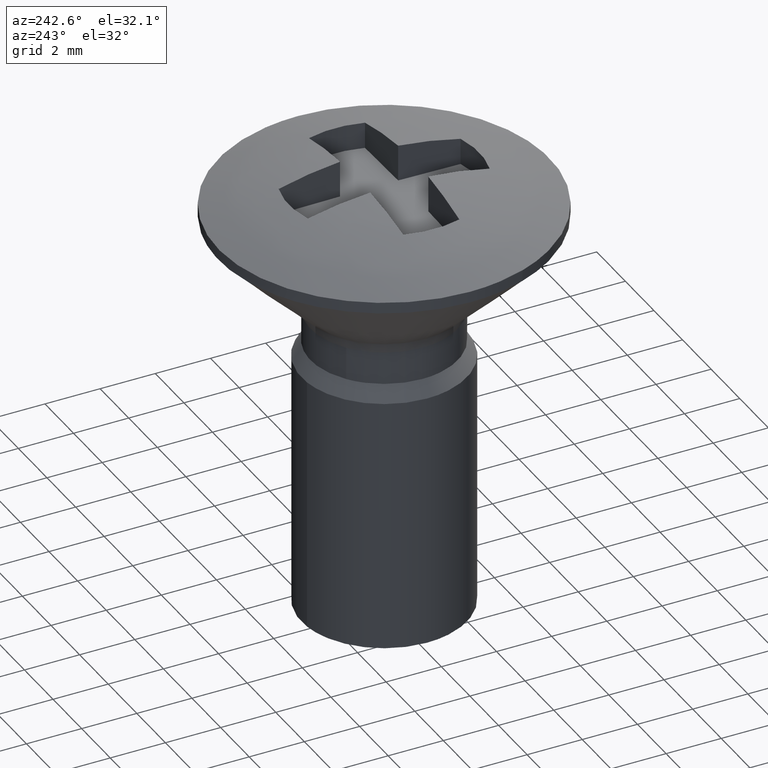
[diagram: clean part render]
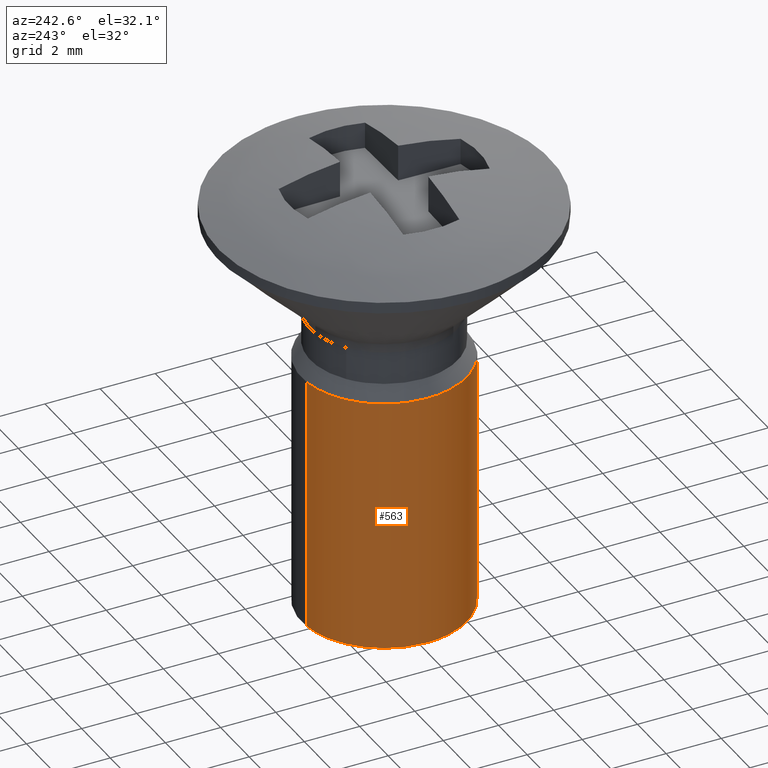
[diagram: same view with one face highlighted and labeled with its STEP entity id]
A machine part, auxiliary view. The second image highlights one B-rep face of the part: STEP entity #563.
In plain terms, the highlighted face is a freeform B-spline surface patch.
Its self-contained STEP definition (entity closure, byte-faithful):
#333=CARTESIAN_POINT('',(0.183143241077346,-2.994404538160465,-5.724999995645167));
#334=VERTEX_POINT('',#333);
#378=CARTESIAN_POINT('',(-0.354100393105621,2.979028853770474,-5.725000000000005));
#379=VERTEX_POINT('',#378);
#395=CARTESIAN_POINT('',(-3.0,0.0,-5.725000000000000));
#396=VERTEX_POINT('',#395);
#397=CARTESIAN_POINT('',(-3.0,0.0,-5.725000000000000));
#398=CARTESIAN_POINT('',(-3.000000000000000,2.664525659304678,-5.725000000000000));
#399=CARTESIAN_POINT('',(-0.354100393105621,2.979028853770474,-5.725000000000005));
#407=(BOUNDED_CURVE()B_SPLINE_CURVE(2,(#397,#398,#399),.UNSPECIFIED.,.F.,.U.)B_SPLINE_CURVE_WITH_KNOTS((3,3),(0.0,0.229562604613297),.UNSPECIFIED.)CURVE()GEOMETRIC_REPRESENTATION_ITEM()RATIONAL_B_SPLINE_CURVE((1.0,0.731050679262446,0.956027011144811))REPRESENTATION_ITEM(''));
#408=EDGE_CURVE('',#396,#379,#407,.T.);
#410=CARTESIAN_POINT('',(0.183143241077346,-2.994404538160464,-5.724999995645168));
#411=CARTESIAN_POINT('',(0.091657097876011,-3.000000000000000,-5.725000000000000));
#412=CARTESIAN_POINT('',(0.0,-3.0,-5.725000000000000));
#413=CARTESIAN_POINT('',(-3.0,-3.0,-5.724999999999999));
#414=CARTESIAN_POINT('',(-3.0,0.0,-5.725000000000000));
#422=(BOUNDED_CURVE()B_SPLINE_CURVE(2,(#410,#411,#412,#413,#414),.UNSPECIFIED.,.F.,.U.)B_SPLINE_CURVE_WITH_KNOTS((3,2,3),(0.739333099233568,0.750000000000000,1.0),.UNSPECIFIED.)CURVE()GEOMETRIC_REPRESENTATION_ITEM()RATIONAL_B_SPLINE_CURVE((0.976072335272453,0.987502948399024,1.0,0.707106781186548,1.0))REPRESENTATION_ITEM(''));
#423=EDGE_CURVE('',#334,#396,#422,.T.);
#462=CARTESIAN_POINT('',(0.183140927725295,-2.994404682164692,-15.0));
#463=VERTEX_POINT('',#462);
#464=CARTESIAN_POINT('',(0.183143241077346,-2.994404538160465,-5.724999995645167));
#465=CARTESIAN_POINT('',(0.183140927725295,-2.994404682164692,-15.0));
#466=QUASI_UNIFORM_CURVE('',1,(#464,#465),.UNSPECIFIED.,.F.,.U.);
#467=EDGE_CURVE('',#334,#463,#466,.T.);
#484=CARTESIAN_POINT('',(-0.354100420918128,2.979028850464580,-15.0));
#485=VERTEX_POINT('',#484);
#501=CARTESIAN_POINT('',(-0.354100393105621,2.979028853770474,-5.725000000000005));
#502=CARTESIAN_POINT('',(-0.354100420918128,2.979028850464580,-15.0));
#503=QUASI_UNIFORM_CURVE('',1,(#501,#502),.UNSPECIFIED.,.F.,.U.);
#504=EDGE_CURVE('',#379,#485,#503,.T.);
#509=CARTESIAN_POINT('',(0.183145618604571,-2.994404395265600,-5.493124999999998));
#510=CARTESIAN_POINT('',(-2.811258776661029,-3.177550013870171,-5.493124999999998));
#511=CARTESIAN_POINT('',(-2.994404395265600,-0.183145618604571,-5.493124999999998));
#512=CARTESIAN_POINT('',(-3.167358590197582,2.644630472518504,-5.493124999999997));
#513=CARTESIAN_POINT('',(-0.354102703970275,2.979028579091000,-5.493124999999999));
#514=CARTESIAN_POINT('',(0.183145618604571,-2.994404395265600,-15.237671875000000));
#515=CARTESIAN_POINT('',(-2.811258776661029,-3.177550013870171,-15.237671875000007));
#516=CARTESIAN_POINT('',(-2.994404395265600,-0.183145618604571,-15.237671875000000));
#517=CARTESIAN_POINT('',(-3.167358590197582,2.644630472518504,-15.237671875000009));
#518=CARTESIAN_POINT('',(-0.354102703970275,2.979028579091000,-15.237671875000006));
#526=(BOUNDED_SURFACE()B_SPLINE_SURFACE(2,1,((#509,#514),(#510,#515),(#511,#516),(#512,#517),(#513,#518)),.UNSPECIFIED.,.F.,.F.,.U.)B_SPLINE_SURFACE_WITH_KNOTS((3,2,3),(2,2),(0.0,4.970562748477139,9.742302987015194),(0.0,9.744546875000006),.UNSPECIFIED.)GEOMETRIC_REPRESENTATION_ITEM()RATIONAL_B_SPLINE_SURFACE(((1.0,1.0),(0.707106781186548,0.707106781186548),(1.0,1.0),(0.718822509939086,0.718822509939086),(0.977505800795127,0.977505800795127)))REPRESENTATION_ITEM('')SURFACE());
#527=ORIENTED_EDGE('',*,*,#408,.T.);
#528=ORIENTED_EDGE('',*,*,#504,.T.);
#529=CARTESIAN_POINT('',(-3.0,0.0,-15.0));
#530=VERTEX_POINT('',#529);
#531=CARTESIAN_POINT('',(-3.0,0.0,-15.0));
#532=CARTESIAN_POINT('',(-3.000000000000000,2.664525634253286,-14.999999999999998));
#533=CARTESIAN_POINT('',(-0.354100420918128,2.979028850464580,-15.000000000000004));
#541=(BOUNDED_CURVE()B_SPLINE_CURVE(2,(#531,#532,#533),.UNSPECIFIED.,.F.,.U.)B_SPLINE_CURVE_WITH_KNOTS((3,3),(0.0,0.229562603035466),.UNSPECIFIED.)CURVE()GEOMETRIC_REPRESENTATION_ITEM()RATIONAL_B_SPLINE_CURVE((1.0,0.731050681110991,0.956027008052193))REPRESENTATION_ITEM(''));
#542=EDGE_CURVE('',#530,#485,#541,.T.);
#543=ORIENTED_EDGE('',*,*,#542,.F.);
#544=CARTESIAN_POINT('',(0.183140927725295,-2.994404682164693,-15.0));
#545=CARTESIAN_POINT('',(0.091655937880026,-3.000000000000000,-14.999999999999993));
#546=CARTESIAN_POINT('',(0.0,-3.0,-15.0));
#547=CARTESIAN_POINT('',(-3.0,-3.0,-14.999999999999995));
#548=CARTESIAN_POINT('',(-3.0,0.0,-15.0));
#556=(BOUNDED_CURVE()B_SPLINE_CURVE(2,(#544,#545,#546,#547,#548),.UNSPECIFIED.,.F.,.U.)B_SPLINE_CURVE_WITH_KNOTS((3,2,3),(0.739333232544912,0.750000000000000,1.0),.UNSPECIFIED.)CURVE()GEOMETRIC_REPRESENTATION_ITEM()RATIONAL_B_SPLINE_CURVE((0.976072620984549,0.987503104582979,1.0,0.707106781186548,1.0))REPRESENTATION_ITEM(''));
#557=EDGE_CURVE('',#463,#530,#556,.T.);
#558=ORIENTED_EDGE('',*,*,#557,.F.);
#559=ORIENTED_EDGE('',*,*,#467,.F.);
#560=ORIENTED_EDGE('',*,*,#423,.T.);
#561=EDGE_LOOP('',(#527,#528,#543,#558,#559,#560));
#562=FACE_OUTER_BOUND('',#561,.T.);
#563=ADVANCED_FACE('',(#562),#526,.T.);